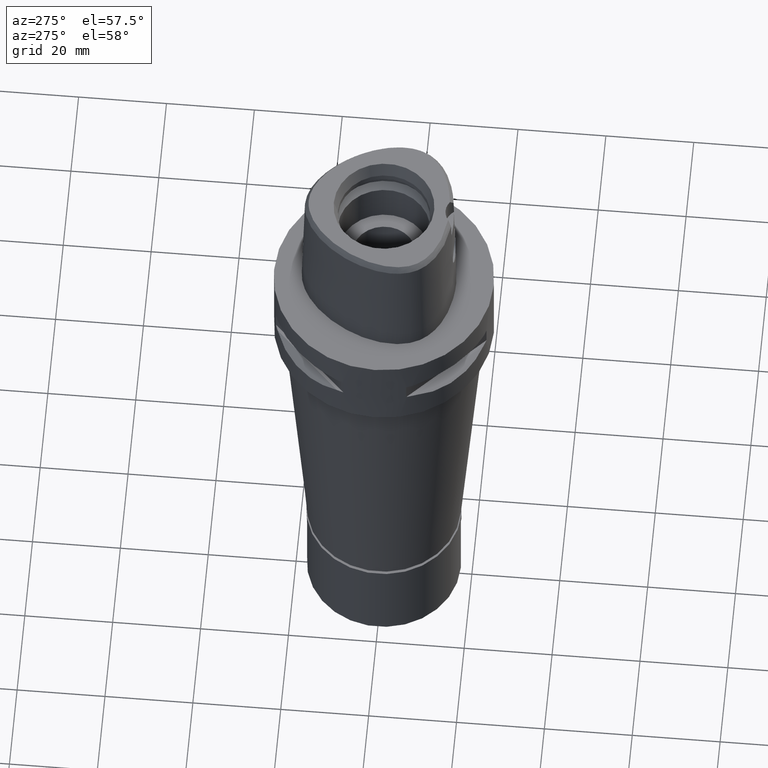
[diagram: clean part render]
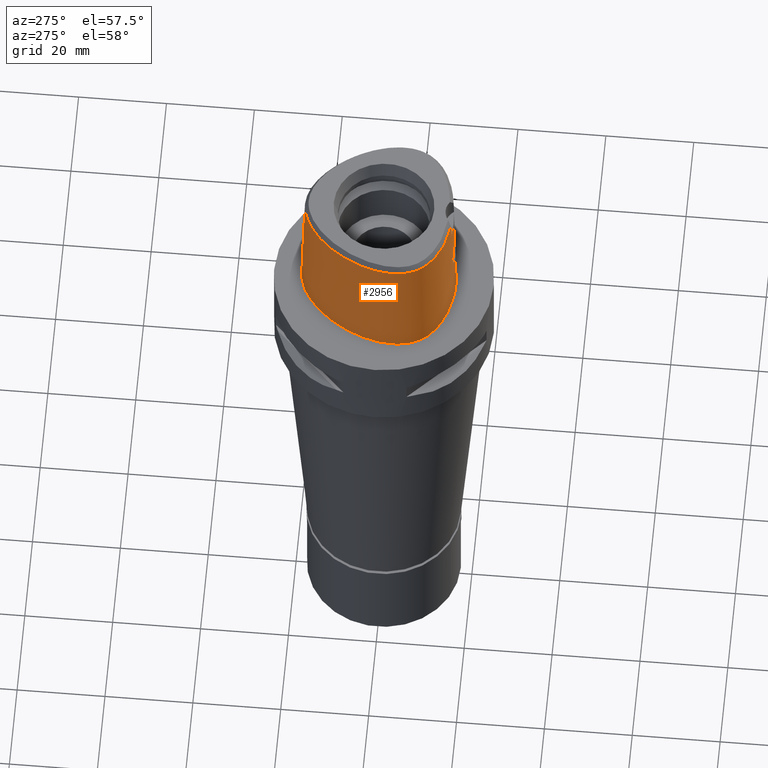
[diagram: same view with one face highlighted and labeled with its STEP entity id]
A machine part, auxiliary view. The second image highlights one B-rep face of the part: STEP entity #2956.
In plain terms, the highlighted face is a freeform B-spline surface patch.
Its self-contained STEP definition (entity closure, byte-faithful):
#50 = CARTESIAN_POINT ( 'NONE',  ( 2.030224829794000080E-07, -15.83752876601000281, 24.70000006102999990 ) ) ;
#55 = CARTESIAN_POINT ( 'NONE',  ( -7.523733151595044966, 15.26501052509501477, 28.52071192347001727 ) ) ;
#136 = CARTESIAN_POINT ( 'NONE',  ( -11.46563507465623033, 12.45218749529545832, 2.902634408600678756E-07 ) ) ;
#164 = CARTESIAN_POINT ( 'NONE',  ( -2.810669180507297416, -15.93357175435962070, 15.18434255724911708 ) ) ;
#171 = CARTESIAN_POINT ( 'NONE',  ( -0.4507704990259999711, 17.98660881677999868, 29.09114250960000092 ) ) ;
#176 = VECTOR ( 'NONE', #1967, 1000.000000000000114 ) ;
#182 = VERTEX_POINT ( 'NONE', #1981 ) ;
#196 = CARTESIAN_POINT ( 'NONE',  ( -16.77753631730000095, -0.3562822726174000310, 29.09114250960000092 ) ) ;
#211 = CARTESIAN_POINT ( 'NONE',  ( -2.977125115133987254, -15.96287852150346609, 13.32982323607667752 ) ) ;
#218 = CARTESIAN_POINT ( 'NONE',  ( -13.74710222949999938, 7.936918704753999521, 29.09114250960000092 ) ) ;
#234 = CARTESIAN_POINT ( 'NONE',  ( -7.967839659705319377, 15.83070311923739659, 2.902634408600678756E-07 ) ) ;
#236 = B_SPLINE_CURVE_WITH_KNOTS ( 'NONE', 3,
 ( #1367, #2101, #2468, #4044, #234, #136, #4828, #1777, #3300, #2518, #534, #2075, #3275, #3573, #1730, #1752, #3623, #3251, #4352, #4074, #1396, #1705 ),
 .UNSPECIFIED., .F., .F.,
 ( 4, 1, 1, 1, 1, 1, 1, 1, 1, 1, 1, 1, 1, 1, 1, 1, 1, 1, 1, 4 ),
 ( 0.0000000000000000000, 0.04166666666800000057, 0.08333333333460000991, 0.1666666666679000042, 0.2500000000011000090, 0.3333333333342000104, 0.4166666666675000186, 0.5000000000006999956, 0.5416666666674000430, 0.5833333333339000282, 0.6250000000005999645, 0.6458333333337999971, 0.6666666666671999808, 0.6875000000005000445, 0.7083333333337999971, 0.7500000000004000134, 0.7916666666671000607, 0.8333333333336000459, 0.9166666666668999985, 1.000000000000000000 ),
 .UNSPECIFIED. ) ;
#239 = CARTESIAN_POINT ( 'NONE',  ( -1.777739861706575164, -15.98655714082971713, 16.48034954023893661 ) ) ;
#247 = B_SPLINE_SURFACE_WITH_KNOTS ( 'NONE', 3, 3, ( 
 ( #2058, #3584, #4465, #3609 ),
 ( #3313, #1741, #2113, #653 ),
 ( #2880, #4837, #937, #171 ),
 ( #2505, #279, #4441, #1765 ),
 ( #2194, #1350, #4005, #1813 ),
 ( #966, #1022, #4032, #4117 ),
 ( #3634, #3336, #598, #1717 ),
 ( #2137, #3240, #4412, #218 ),
 ( #3656, #4860, #2587, #2905 ),
 ( #991, #3286, #2529, #196 ),
 ( #4812, #3715, #4058, #1431 ),
 ( #1382, #4763, #623, #2961 ),
 ( #2162, #3686, #3262, #251 ),
 ( #1789, #4784, #1406, #4495 ),
 ( #2933, #2558, #4091, #2479 ),
 ( #1052, #2085, #1323, #2851 ),
 ( #4386, #573, #4613, #3432 ),
 ( #1504, #3391, #4588, #2242 ),
 ( #3040, #746, #3765, #307 ),
 ( #3014, #704, #3367, #374 ),
 ( #4892, #4916, #1484, #330 ),
 ( #2676, #3835, #3742, #3457 ),
 ( #399, #1146, #4144, #1863 ),
 ( #2217, #351, #1907, #2265 ) ),
 .UNSPECIFIED., .F., .F., .F.,
 ( 4, 1, 1, 1, 1, 1, 1, 1, 1, 1, 1, 1, 1, 1, 1, 1, 1, 1, 1, 1, 1, 4 ),
 ( 4, 4 ),
 ( -0.01173812893894999980, 0.0000000000000000000, 0.04166666666800000057, 0.08333333333460000991, 0.1666666666679000042, 0.2500000000011000090, 0.3333333333342000104, 0.4166666666675000186, 0.5000000000006999956, 0.5416666666674000430, 0.5833333333339000282, 0.6250000000005999645, 0.6458333333337999971, 0.6666666666671999808, 0.6875000000005000445, 0.7083333333337999971, 0.7500000000004000134, 0.7916666666671000607, 0.8333333333336000459, 0.9166666666668999985, 1.000000000000000000, 1.017968513185000035 ),
 ( 6.196873590658000248E-09, 0.9999996839595000075 ),
 .UNSPECIFIED. ) ;
#251 = CARTESIAN_POINT ( 'NONE',  ( -16.46533720197999884, -6.958244337978999994, 29.09114250960000092 ) ) ;
#270 = CARTESIAN_POINT ( 'NONE',  ( -0.7803301224158988303, -16.17127761896326277, 11.02218832487880462 ) ) ;
#279 = CARTESIAN_POINT ( 'NONE',  ( -1.992618757892999914, 18.32080821449000041, 9.316771130525999922 ) ) ;
#307 = CARTESIAN_POINT ( 'NONE',  ( -11.32630903587000049, -13.06981832401999988, 29.09114250960000092 ) ) ;
#323 = CARTESIAN_POINT ( 'NONE',  ( -2.167461438340697377, -16.07478142648848518, 11.85411610869223509 ) ) ;
#330 = CARTESIAN_POINT ( 'NONE',  ( -4.922186808108000022, -15.43572524842000071, 29.09114250960000092 ) ) ;
#345 = CARTESIAN_POINT ( 'NONE',  ( -1.175386497639862027, -16.15078445366180304, 11.18557374674750626 ) ) ;
#349 = EDGE_CURVE ( 'NONE', #2353, #182, #3883, .T. ) ;
#351 = CARTESIAN_POINT ( 'NONE',  ( 1.079551363307000189, -16.20136649706000043, 9.316771130525999922 ) ) ;
#366 = CARTESIAN_POINT ( 'NONE',  ( -2.552453281223321380, -16.03022206925511384, 12.33036638904224169 ) ) ;
#374 = CARTESIAN_POINT ( 'NONE',  ( -8.697311594518000177, -14.35163131391999869, 29.09114250960000092 ) ) ;
#399 = CARTESIAN_POINT ( 'NONE',  ( 0.7264497204584000611, -16.46229665649000040, -0.5704145590118000486 ) ) ;
#452 = CARTESIAN_POINT ( 'NONE',  ( -3.738627773282205080, -15.49270868799680301, 28.52071192347001727 ) ) ;
#471 = VECTOR ( 'NONE', #2164, 1000.000000000000227 ) ;
#477 = CARTESIAN_POINT ( 'NONE',  ( -16.85489160761523664, -5.354527567564993262, 28.52071192347001727 ) ) ;
#493 = CARTESIAN_POINT ( 'NONE',  ( 0.0000000000000000000, -16.02877864023999877, 17.05000000000000071 ) ) ;
#517 = CARTESIAN_POINT ( 'NONE',  ( -0.1860095695895606915, -16.02877864024000232, 17.05000000000000426 ) ) ;
#523 = FACE_OUTER_BOUND ( 'NONE', #1260, .T. ) ;
#534 = CARTESIAN_POINT ( 'NONE',  ( -17.56373942211470052, -5.455996092717230184, 2.902634408600678756E-07 ) ) ;
#557 = ORIENTED_EDGE ( 'NONE', *, *, #2820, .T. ) ;
#565 = CARTESIAN_POINT ( 'NONE',  ( -2.955918695228478832, -15.92874700794745202, 14.77770287554524842 ) ) ;
#573 = CARTESIAN_POINT ( 'NONE',  ( -14.61870771712999861, -11.12154153579999871, 9.316771130525999922 ) ) ;
#581 = CARTESIAN_POINT ( 'NONE',  ( -3.213444811939455636, -15.61774738279276953, 25.97357064115666603 ) ) ;
#591 = CARTESIAN_POINT ( 'NONE',  ( -2.789432624430154384, -15.93448362603995250, 15.23385107219888290 ) ) ;
#598 = CARTESIAN_POINT ( 'NONE',  ( -11.09665507429999920, 12.14079284299000072, 19.20395682006000015 ) ) ;
#607 = ORIENTED_EDGE ( 'NONE', *, *, #4695, .T. ) ;
#615 = CARTESIAN_POINT ( 'NONE',  ( -0.7716804096337155361, -16.02065638628776512, 16.95256773572716824 ) ) ;
#623 = CARTESIAN_POINT ( 'NONE',  ( -17.08644829448999758, -5.387673914391999830, 19.20395682006000015 ) ) ;
#625 = CARTESIAN_POINT ( 'NONE',  ( -3.151832883024999780E-11, 17.98202997909999823, 28.52071728569000086 ) ) ;
#653 = CARTESIAN_POINT ( 'NONE',  ( 0.3539521848052000208, 17.96246321054000106, 29.09114250960000092 ) ) ;
#672 = CARTESIAN_POINT ( 'NONE',  ( -2.611019405680786498, -16.02245593392139611, 12.42336243517981131 ) ) ;
#704 = CARTESIAN_POINT ( 'NONE',  ( -8.866858758003999696, -14.81887824760000072, 9.316771130525999922 ) ) ;
#719 = CARTESIAN_POINT ( 'NONE',  ( -2.746377481657157560, -16.00326057041207051, 12.66963668950922894 ) ) ;
#746 = CARTESIAN_POINT ( 'NONE',  ( -11.57144732029000167, -13.50085889136000006, 9.316771130525999922 ) ) ;
#756 = ORIENTED_EDGE ( 'NONE', *, *, #2435, .F. ) ;
#781 = CARTESIAN_POINT ( 'NONE',  ( -3.235121119988999983, -15.64755630481999837, 24.69999999999999929 ) ) ;
#804 = CARTESIAN_POINT ( 'NONE',  ( 2.030224829794000080E-07, -15.83752876601000281, 24.70000006102999990 ) ) ;
#838 = CARTESIAN_POINT ( 'NONE',  ( 6.782427745162731141E-08, -15.90128720080152824, 22.15000025259048755 ) ) ;
#907 = CARTESIAN_POINT ( 'NONE',  ( -1.154649350554052933, -16.01059875151096890, 16.82300001247257271 ) ) ;
#929 = CARTESIAN_POINT ( 'NONE',  ( -1.080687980688739058, -16.01283629952125764, 16.85233897233272060 ) ) ;
#937 = CARTESIAN_POINT ( 'NONE',  ( -0.4636176514126999493, 18.23430334598000258, 19.20395682006000015 ) ) ;
#966 = CARTESIAN_POINT ( 'NONE',  ( -7.976721799469000729, 15.84201698335000330, -0.5704145590118000486 ) ) ;
#975 = CARTESIAN_POINT ( 'NONE',  ( 2.030224829794000080E-07, -15.83752876601000281, 24.70000006102999990 ) ) ;
#984 = CARTESIAN_POINT ( 'NONE',  ( -1.123850819246241084, -16.01154604563820527, 16.83544840130009845 ) ) ;
#991 = CARTESIAN_POINT ( 'NONE',  ( -17.51166498201000010, -0.2260900534781000171, -0.5704145590118000486 ) ) ;
#1022 = CARTESIAN_POINT ( 'NONE',  ( -7.822764788575000239, 15.64591010519000136, 9.316771130525999922 ) ) ;
#1042 = CARTESIAN_POINT ( 'NONE',  ( -2.589913444526261710, -16.02530027108240418, 12.38873572170439097 ) ) ;
#1052 = CARTESIAN_POINT ( 'NONE',  ( -15.66039569081999971, -10.22138777225999995, -0.5704145590118000486 ) ) ;
#1070 = CARTESIAN_POINT ( 'NONE',  ( -2.676760126935361583, -16.01335860443708015, 12.53714519679417094 ) ) ;
#1091 = CARTESIAN_POINT ( 'NONE',  ( -2.823487070365362506, -15.99101270351569859, 12.84654193248369047 ) ) ;
#1114 = CARTESIAN_POINT ( 'NONE',  ( -2.174903967716026898, -16.07399873101336496, 11.86167149722171743 ) ) ;
#1146 = CARTESIAN_POINT ( 'NONE',  ( 0.7201291720390999851, -16.21519153464999974, 9.316771130525999922 ) ) ;
#1201 = CARTESIAN_POINT ( 'NONE',  ( -15.58740380353674837, -8.999391780897031623, 28.52071192347001727 ) ) ;
#1248 = CARTESIAN_POINT ( 'NONE',  ( -16.79165457291105668, -0.3537785057483363582, 28.52071192347001727 ) ) ;
#1260 = EDGE_LOOP ( 'NONE', ( #3486, #3672, #2891, #607, #756, #557, #3057, #3668 ) ) ;
#1293 = CARTESIAN_POINT ( 'NONE',  ( 0.0000000000000000000, -16.02877864023999877, 17.05000000000000071 ) ) ;
#1301 = CARTESIAN_POINT ( 'NONE',  ( -16.47905549556985960, -6.962316292879828339, 28.52071192347001727 ) ) ;
#1317 = CARTESIAN_POINT ( 'NONE',  ( -1.331640452556058563, -16.00477934145615322, 16.74576209627321433 ) ) ;
#1323 = CARTESIAN_POINT ( 'NONE',  ( -15.25987615121000118, -9.930205417066000351, 19.20395682006000015 ) ) ;
#1339 = CARTESIAN_POINT ( 'NONE',  ( -3.027041479268741675, -15.93083733890011899, 14.38613028388799187 ) ) ;
#1350 = CARTESIAN_POINT ( 'NONE',  ( -4.628819286711999936, 17.52182800605999802, 9.316771130525999922 ) ) ;
#1367 = CARTESIAN_POINT ( 'NONE',  ( 6.766080446176000696E-11, 18.69499999997999851, 1.596870783752999901E-13 ) ) ;
#1371 = CARTESIAN_POINT ( 'NONE',  ( -1.464230115316311753, -15.99978155752924280, 16.67600899016695593 ) ) ;
#1382 = CARTESIAN_POINT ( 'NONE',  ( -17.57791639372999981, -5.458025465413999910, -0.5704145590118000486 ) ) ;
#1396 = CARTESIAN_POINT ( 'NONE',  ( -1.683697722098772553, -16.45499999274726477, 2.902634408600678756E-07 ) ) ;
#1399 = CARTESIAN_POINT ( 'NONE',  ( -2.909137552899626833, -15.97627371699406140, 13.08234413149751596 ) ) ;
#1406 = CARTESIAN_POINT ( 'NONE',  ( -16.22974823379999876, -8.250337701102999688, 19.20395682006000015 ) ) ;
#1422 = CARTESIAN_POINT ( 'NONE',  ( -1.171575576435083033, -16.15098385800270364, 11.18398276020164417 ) ) ;
#1431 = CARTESIAN_POINT ( 'NONE',  ( -16.98194860270000106, -3.273961223849000124, 29.09114250960000092 ) ) ;
#1478 = CARTESIAN_POINT ( 'NONE',  ( -2.785351805582556128, -15.99721084885888445, 12.75429401941662277 ) ) ;
#1484 = CARTESIAN_POINT ( 'NONE',  ( -4.965998119821999346, -15.68039705940999973, 19.20395682006000015 ) ) ;
#1498 = CARTESIAN_POINT ( 'NONE',  ( -1.994661405231343609, -16.09284332352424229, 11.68121651172240227 ) ) ;
#1504 = CARTESIAN_POINT ( 'NONE',  ( -13.51574691055999899, -12.49390941008000055, -0.5704145590118000486 ) ) ;
#1592 = CARTESIAN_POINT ( 'NONE',  ( -13.75951393052779004, 7.944084103042361455, 28.52071192347001727 ) ) ;
#1594 = CARTESIAN_POINT ( 'NONE',  ( 6.766080446176000696E-11, 18.69499999997999851, 1.596870783752999901E-13 ) ) ;
#1705 = CARTESIAN_POINT ( 'NONE',  ( -1.591572851427000094E-11, -16.45500000000000185, 1.608343088339999949E-13 ) ) ;
#1710 = CARTESIAN_POINT ( 'NONE',  ( -1.142332392166681032, -16.01097948216497713, 16.82800652385417806 ) ) ;
#1717 = CARTESIAN_POINT ( 'NONE',  ( -10.90668517024999851, 11.98047084134999984, 29.09114250960000092 ) ) ;
#1730 = CARTESIAN_POINT ( 'NONE',  ( -15.64884223668260788, -10.21298827697042277, 2.902634408600678756E-07 ) ) ;
#1735 = CARTESIAN_POINT ( 'NONE',  ( -3.012997481774652542, -15.92993551890240944, 14.48403558616877440 ) ) ;
#1741 = CARTESIAN_POINT ( 'NONE',  ( 0.3738602579233000212, 18.45648981796999877, 9.316771130525999922 ) ) ;
#1752 = CARTESIAN_POINT ( 'NONE',  ( -14.78833379871087850, -11.28232909655144489, 2.902634408600678756E-07 ) ) ;
#1756 = CARTESIAN_POINT ( 'NONE',  ( -2.147290074988068564, -15.96826519308857151, 16.16606823402927162 ) ) ;
#1765 = CARTESIAN_POINT ( 'NONE',  ( -1.890839688985999745, 17.83402871055000105, 29.09114250960000092 ) ) ;
#1777 = CARTESIAN_POINT ( 'NONE',  ( -16.51672824093293102, 3.703437497522479749, 2.902634408600678756E-07 ) ) ;
#1780 = CARTESIAN_POINT ( 'NONE',  ( -2.139722381400449791, -15.96867257770621329, 16.17353267031687380 ) ) ;
#1789 = CARTESIAN_POINT ( 'NONE',  ( -16.68217931805000021, -8.451606615314000592, -0.5704145590118000486 ) ) ;
#1805 = CARTESIAN_POINT ( 'NONE',  ( -1.304824586065641556, -16.14367980511035938, 11.24258093298021421 ) ) ;
#1813 = CARTESIAN_POINT ( 'NONE',  ( -4.416345333839000631, 17.06979586586999886, 29.09114250960000092 ) ) ;
#1830 = CARTESIAN_POINT ( 'NONE',  ( -2.543826128444885981, -16.03134158490991368, 12.31726274100129181 ) ) ;
#1863 = CARTESIAN_POINT ( 'NONE',  ( 0.7074880752007000062, -15.72098129098000285, 29.09114250960000092 ) ) ;
#1901 = CARTESIAN_POINT ( 'NONE',  ( -2.828519626698093425, -15.99018834924776833, 12.85893844538407471 ) ) ;
#1907 = CARTESIAN_POINT ( 'NONE',  ( 1.070056064474000035, -15.95437377842999815, 19.20395682006000015 ) ) ;
#1910 = EDGE_CURVE ( 'NONE', #2000, #3222, #3099, .T. ) ;
#1967 = DIRECTION ( 'NONE',  ( -1.272217798567968351E-12, -0.02499051295371941192, -0.9996876883618752707 ) ) ;
#1974 = EDGE_CURVE ( 'NONE', #182, #2000, #4053, .T. ) ;
#1981 = CARTESIAN_POINT ( 'NONE',  ( 0.0000000000000000000, -16.02877864023999877, 17.05000000000000071 ) ) ;
#2000 = VERTEX_POINT ( 'NONE', #2210 ) ;
#2012 = CARTESIAN_POINT ( 'NONE',  ( -15.84228689413313695, 3.460033471612402156, 28.52071192347001727 ) ) ;
#2040 = CARTESIAN_POINT ( 'NONE',  ( -0.6295828121024585888, 17.98203011041520938, 28.52071192347001727 ) ) ;
#2053 = CARTESIAN_POINT ( 'NONE',  ( -1.858121229639703165, -15.98284882596949430, 16.42071856142349517 ) ) ;
#2058 = CARTESIAN_POINT ( 'NONE',  ( 0.5756361489238999152, 18.69183959664999861, -0.5704145590118000486 ) ) ;
#2075 = CARTESIAN_POINT ( 'NONE',  ( -17.16495051082599232, -7.165908201052948456, 2.902634408600678756E-07 ) ) ;
#2079 = CARTESIAN_POINT ( 'NONE',  ( -2.121841374836336502, -15.96962928976702223, 16.19099185722664913 ) ) ;
#2085 = CARTESIAN_POINT ( 'NONE',  ( -15.46013592100999823, -10.07579659465999988, 9.316771130525999922 ) ) ;
#2101 = CARTESIAN_POINT ( 'NONE',  ( -0.6801907853514496116, 18.69499999274968260, 2.902634408600678756E-07 ) ) ;
#2107 = CARTESIAN_POINT ( 'NONE',  ( -0.9942354941257960377, -16.01528989706931583, 16.88423654522949491 ) ) ;
#2113 = CARTESIAN_POINT ( 'NONE',  ( 0.3639062213641999777, 18.20947651425999680, 19.20395682006000015 ) ) ;
#2130 = CARTESIAN_POINT ( 'NONE',  ( -3.049900212868040139, -15.94261167837582249, 13.81468546120752094 ) ) ;
#2137 = CARTESIAN_POINT ( 'NONE',  ( -14.39249254919999998, 8.309508946964999865, -0.5704145590118000486 ) ) ;
#2144 = CARTESIAN_POINT ( 'NONE',  ( -3.191384176940533557, -15.58827403572775339, 27.24714128231333277 ) ) ;
#2151 = CARTESIAN_POINT ( 'NONE',  ( -1.161963448143295885, -16.01037049747072416, 16.81999471490733455 ) ) ;
#2162 = CARTESIAN_POINT ( 'NONE',  ( -17.17866842596000154, -7.169980043617999677, -0.5704145590118000486 ) ) ;
#2164 = DIRECTION ( 'NONE',  ( 3.476355713690889960E-12, 0.02499051285796925065, -0.9996876883642689116 ) ) ;
#2194 = CARTESIAN_POINT ( 'NONE',  ( -4.735056263149000522, 17.74784407615999982, -0.5704145590118000486 ) ) ;
#2210 = CARTESIAN_POINT ( 'NONE',  ( -1.980591514487999971E-12, -16.18126839358999902, 10.94999999999999929 ) ) ;
#2217 = CARTESIAN_POINT ( 'NONE',  ( 1.089046662139999899, -16.44835921569999826, -0.5704145590118000486 ) ) ;
#2233 = CARTESIAN_POINT ( 'NONE',  ( -1.489022098418545381, -16.13222843889011671, 11.33656707562901822 ) ) ;
#2242 = CARTESIAN_POINT ( 'NONE',  ( -13.05575617123000143, -11.90823727355999928, 29.09114250960000092 ) ) ;
#2259 = CARTESIAN_POINT ( 'NONE',  ( -2.651693848328784853, -16.01689519106128756, 12.49206992028461016 ) ) ;
#2265 = CARTESIAN_POINT ( 'NONE',  ( 1.060560765641999970, -15.70738105978999855, 29.09114250960000092 ) ) ;
#2353 = VERTEX_POINT ( 'NONE', #975 ) ;
#2368 = CARTESIAN_POINT ( 'NONE',  ( -2.169052023958246256, -15.77399788493218047, 24.70000016923092900 ) ) ;
#2383 = CARTESIAN_POINT ( 'NONE',  ( -11.33338053122041877, -13.08225253589758630, 28.52071192347001727 ) ) ;
#2423 = CARTESIAN_POINT ( 'NONE',  ( -1.578081282717826550, -15.99520688258699508, 16.61014732800261484 ) ) ;
#2431 = CARTESIAN_POINT ( 'NONE',  ( -13.06460239553432778, -11.91950051571991587, 28.52071192347001727 ) ) ;
#2435 = EDGE_CURVE ( 'NONE', #4556, #4076, #4444, .T. ) ;
#2446 = CARTESIAN_POINT ( 'NONE',  ( -1.647720974877696420, -15.99226611569825174, 16.56665347345779438 ) ) ;
#2468 = CARTESIAN_POINT ( 'NONE',  ( -2.040572356172971169, 18.55015624285487164, 2.902634408600678756E-07 ) ) ;
#2472 = CARTESIAN_POINT ( 'NONE',  ( -1.684236301197035601, -15.99068050411804975, 16.54283389550539596 ) ) ;
#2479 = CARTESIAN_POINT ( 'NONE',  ( -15.57503103062999905, -8.992248357108000079, 29.09114250960000092 ) ) ;
#2498 = CARTESIAN_POINT ( 'NONE',  ( -3.050024389103565436, -15.93682728871436893, 14.04426652284395338 ) ) ;
#2505 = CARTESIAN_POINT ( 'NONE',  ( -2.043508292347000044, 18.56419796646000009, -0.5704145590118000486 ) ) ;
#2515 = VERTEX_POINT ( 'NONE', #4347 ) ;
#2518 = CARTESIAN_POINT ( 'NONE',  ( -17.71143734833404437, -3.269218750047608424, 2.902634408600678756E-07 ) ) ;
#2521 = CARTESIAN_POINT ( 'NONE',  ( -1.974011923642614574, -15.97722169910660561, 16.32556985268800531 ) ) ;
#2529 = CARTESIAN_POINT ( 'NONE',  ( -17.02224587221000007, -0.3128848662375999790, 19.20395682006000015 ) ) ;
#2558 = CARTESIAN_POINT ( 'NONE',  ( -16.00394177348999847, -9.239880090674999380, 9.316771130525999922 ) ) ;
#2576 = CARTESIAN_POINT ( 'NONE',  ( -1.365876440252466129, -16.14000093520536083, 11.27254294479018526 ) ) ;
#2587 = CARTESIAN_POINT ( 'NONE',  ( -16.06260414779999834, 3.539545362120000149, 19.20395682006000015 ) ) ;
#2604 = CARTESIAN_POINT ( 'NONE',  ( -2.421847348362510033, -16.04659734725419185, 12.14335169878023279 ) ) ;
#2625 = CARTESIAN_POINT ( 'NONE',  ( -2.326795673539355569, -16.05749942887523218, 12.02743345691540355 ) ) ;
#2647 = CARTESIAN_POINT ( 'NONE',  ( -1.572520811366936222, -16.12649376600629481, 11.38472095010802931 ) ) ;
#2676 = CARTESIAN_POINT ( 'NONE',  ( -1.321318946904000091, -16.50155084269999861, -0.5704145590118000486 ) ) ;
#2734 = CARTESIAN_POINT ( 'NONE',  ( -3.151832883024999780E-11, 17.98202997909999823, 28.52071728569000086 ) ) ;
#2759 = CARTESIAN_POINT ( 'NONE',  ( -3.168920966622999824, -15.55911077538999976, 28.52071192346999950 ) ) ;
#2780 = CARTESIAN_POINT ( 'NONE',  ( -10.91764528034774528, 11.98972044748025567, 28.52071192347001727 ) ) ;
#2820 = EDGE_CURVE ( 'NONE', #4556, #2515, #2822, .T. ) ;
#2822 = B_SPLINE_CURVE_WITH_KNOTS ( 'NONE', 3,
 ( #2759, #452, #4740, #3166, #2383, #2431, #3914, #3487, #1201, #3512, #1301, #477, #3121, #1248, #2012, #1592, #2780, #55, #4314, #2830, #2040, #2734 ),
 .UNSPECIFIED., .F., .F.,
 ( 4, 1, 1, 1, 1, 1, 1, 1, 1, 1, 1, 1, 1, 1, 1, 1, 1, 1, 1, 4 ),
 ( 0.0000000000000000000, 0.03108635432773702162, 0.1191694130251577666, 0.1632109423737096165, 0.2072524717224729085, 0.2512940010711304795, 0.2733147657454592094, 0.2953355304197880504, 0.3173562950942224736, 0.3393770597684456214, 0.3834185891172087746, 0.4274601184657605968, 0.4715016478145239165, 0.5595847065118388919, 0.6476677652092598381, 0.7357508239064691757, 0.8238338826037843177, 0.9119169413012050418, 0.9559584706498626128, 1.000000000000000000 ),
 .UNSPECIFIED. ) ;
#2823 = CARTESIAN_POINT ( 'NONE',  ( -2.094858927816665606, -15.97106233740283976, 16.21701581232822065 ) ) ;
#2830 = CARTESIAN_POINT ( 'NONE',  ( -1.893775706182446505, 17.84807082153692903, 28.52071192347001727 ) ) ;
#2843 = CARTESIAN_POINT ( 'NONE',  ( -0.6729281202622269253, -16.02259025627639133, 16.97651237904559096 ) ) ;
#2851 = CARTESIAN_POINT ( 'NONE',  ( -15.05961638139999970, -9.784614239467000374, 29.09114250960000092 ) ) ;
#2873 = CARTESIAN_POINT ( 'NONE',  ( -3.040936525959400338, -15.93294854341575828, 14.23999838212622215 ) ) ;
#2880 = CARTESIAN_POINT ( 'NONE',  ( -0.4893119561862999123, 18.72969240435999794, -0.5704145590118000486 ) ) ;
#2891 = ORIENTED_EDGE ( 'NONE', *, *, #349, .F. ) ;
#2905 = CARTESIAN_POINT ( 'NONE',  ( -15.82879768048000102, 3.455165251528999892, 29.09114250960000092 ) ) ;
#2923 = CARTESIAN_POINT ( 'NONE',  ( -2.852964108057066017, -15.98613240798083623, 12.92095709857100516 ) ) ;
#2933 = CARTESIAN_POINT ( 'NONE',  ( -16.21839714490999995, -9.363695957458000763, -0.5704145590118000486 ) ) ;
#2956 = ADVANCED_FACE ( 'NONE', ( #523 ), #247, .T. ) ;
#2961 = CARTESIAN_POINT ( 'NONE',  ( -16.84071424487999735, -5.352498138881000678, 29.09114250960000092 ) ) ;
#3014 = CARTESIAN_POINT ( 'NONE',  ( -8.951632339747000344, -15.05250171443999996, -0.5704145590118000486 ) ) ;
#3040 = CARTESIAN_POINT ( 'NONE',  ( -11.69401646250000049, -13.71637917501999837, -0.5704145590118000486 ) ) ;
#3057 = ORIENTED_EDGE ( 'NONE', *, *, #4173, .T. ) ;
#3099 = LINE ( 'NONE', #4246, #176 ) ;
#3121 = CARTESIAN_POINT ( 'NONE',  ( -16.99625270563292290, -3.273868231552949926, 28.52071192347001727 ) ) ;
#3162 = CARTESIAN_POINT ( 'NONE',  ( 6.797948791014920614E-08, -15.96503292052123690, 19.60000012629524591 ) ) ;
#3166 = CARTESIAN_POINT ( 'NONE',  ( -8.702202515497985402, -14.36510996955648167, 28.52071192347001727 ) ) ;
#3222 = VERTEX_POINT ( 'NONE', #4308 ) ;
#3231 = CARTESIAN_POINT ( 'NONE',  ( -2.814800487489387493, -15.93339868692382488, 15.17448999603847426 ) ) ;
#3237 = B_SPLINE_CURVE_WITH_KNOTS ( 'NONE', 3,
 ( #804, #3544, #2368, #781 ),
 .UNSPECIFIED., .F., .F.,
 ( 4, 4 ),
 ( 0.0000000000000000000, 1.000000000000000000 ),
 .UNSPECIFIED. ) ;
#3240 = CARTESIAN_POINT ( 'NONE',  ( -14.17736244263000067, 8.185312199561000313, 9.316771130525999922 ) ) ;
#3251 = CARTESIAN_POINT ( 'NONE',  ( -11.68694516223571078, -13.70394530617399909, 2.902634408600678756E-07 ) ) ;
#3256 = CARTESIAN_POINT ( 'NONE',  ( -2.897875851388389101, -15.92997726602839137, 14.97345579577848973 ) ) ;
#3260 = CARTESIAN_POINT ( 'NONE',  ( -3.168920966622999824, -15.55911077538999976, 28.52071192346999950 ) ) ;
#3262 = CARTESIAN_POINT ( 'NONE',  ( -16.70311427664000092, -7.028822906525000747, 19.20395682006000015 ) ) ;
#3275 = CARTESIAN_POINT ( 'NONE',  ( -16.66912841474808715, -8.445800778295868838, 2.902634408600678756E-07 ) ) ;
#3278 = CARTESIAN_POINT ( 'NONE',  ( -2.663989615087106078, -15.94049756288776187, 15.48802251320619483 ) ) ;
#3286 = CARTESIAN_POINT ( 'NONE',  ( -17.26695542711000186, -0.2694874598577999825, 9.316771130525999922 ) ) ;
#3300 = CARTESIAN_POINT ( 'NONE',  ( -17.49754711588939315, -0.2285937512740469912, 2.902634408600678756E-07 ) ) ;
#3305 = CARTESIAN_POINT ( 'NONE',  ( -2.804416461969645891, -15.93383585885214870, 15.19914549896235734 ) ) ;
#3313 = CARTESIAN_POINT ( 'NONE',  ( 0.3838142944823000335, 18.70350312168999807, -0.5704145590118000486 ) ) ;
#3328 = CARTESIAN_POINT ( 'NONE',  ( -1.824495776585046691, -16.10763072133384455, 11.54770719424305625 ) ) ;
#3336 = CARTESIAN_POINT ( 'NONE',  ( -11.28662497834000078, 12.30111484462000071, 9.316771130525999922 ) ) ;
#3355 = CARTESIAN_POINT ( 'NONE',  ( -1.234760267101593367, -16.14760890805743543, 11.21096960602428716 ) ) ;
#3367 = CARTESIAN_POINT ( 'NONE',  ( -8.782085176261000825, -14.58525478075999970, 19.20395682006000015 ) ) ;
#3391 = CARTESIAN_POINT ( 'NONE',  ( -13.36241666411000040, -12.29868536457000161, 9.316771130525999922 ) ) ;
#3432 = CARTESIAN_POINT ( 'NONE',  ( -14.25868500212999912, -10.78027813091999931, 29.09114250960000092 ) ) ;
#3457 = CARTESIAN_POINT ( 'NONE',  ( -1.286803369909999883, -15.75925599654999942, 29.09114250960000092 ) ) ;
#3486 = ORIENTED_EDGE ( 'NONE', *, *, #1910, .F. ) ;
#3487 = CARTESIAN_POINT ( 'NONE',  ( -15.07117015427914275, -9.793013966485473176, 28.52071192347001727 ) ) ;
#3512 = CARTESIAN_POINT ( 'NONE',  ( -16.01658395503594434, -8.155509241190108227, 28.52071192347001727 ) ) ;
#3544 = CARTESIAN_POINT ( 'NONE',  ( -1.084489118009396735, -15.83754148632192660, 24.70000016923092900 ) ) ;
#3573 = CARTESIAN_POINT ( 'NONE',  ( -16.20602471333987893, -9.356552730739435830, 2.902634408600678756E-07 ) ) ;
#3576 = CARTESIAN_POINT ( 'NONE',  ( -2.453157249255232042, -15.95160785209423437, 15.82331514067402622 ) ) ;
#3584 = CARTESIAN_POINT ( 'NONE',  ( 0.5606135782155999836, 18.44514047048999927, 9.316771130525999922 ) ) ;
#3603 = CARTESIAN_POINT ( 'NONE',  ( -2.727932080410536919, -15.93733995233605505, 15.36492654818570891 ) ) ;
#3609 = CARTESIAN_POINT ( 'NONE',  ( 0.5305684367989000894, 17.95174221817999793, 29.09114250960000092 ) ) ;
#3623 = CARTESIAN_POINT ( 'NONE',  ( -13.50690093030188343, -12.48264647864620436, 2.902634408600678756E-07 ) ) ;
#3626 = CARTESIAN_POINT ( 'NONE',  ( -1.246904710702340768, -16.00770134240424269, 16.78481881916648177 ) ) ;
#3634 = CARTESIAN_POINT ( 'NONE',  ( -11.47659488238999970, 12.46143684625000070, -0.5704145590118000486 ) ) ;
#3649 = CARTESIAN_POINT ( 'NONE',  ( -3.033174470079177176, -15.94941370605617514, 13.62317640955338760 ) ) ;
#3656 = CARTESIAN_POINT ( 'NONE',  ( -16.53021708244999743, 3.708305583302999864, -0.5704145590118000486 ) ) ;
#3668 = ORIENTED_EDGE ( 'NONE', *, *, #4645, .T. ) ;
#3672 = ORIENTED_EDGE ( 'NONE', *, *, #1974, .F. ) ;
#3677 = CARTESIAN_POINT ( 'NONE',  ( -1.671121799479824865, -15.99125384014654294, 16.55147925626843985 ) ) ;
#3686 = CARTESIAN_POINT ( 'NONE',  ( -16.94089135129999946, -7.099401475071999812, 9.316771130525999922 ) ) ;
#3706 = CARTESIAN_POINT ( 'NONE',  ( -1.185240961617994637, -16.15026635704342084, 11.18970954939995188 ) ) ;
#3715 = CARTESIAN_POINT ( 'NONE',  ( -17.47781023866999917, -3.270737581493999624, 9.316771130525999922 ) ) ;
#3734 = CARTESIAN_POINT ( 'NONE',  ( -0.3804472261485084550, -16.18126839358999902, 10.94999999999999751 ) ) ;
#3742 = CARTESIAN_POINT ( 'NONE',  ( -1.298308562240999775, -16.00668761193000122, 19.20395682006000015 ) ) ;
#3765 = CARTESIAN_POINT ( 'NONE',  ( -11.44887817807999930, -13.28533860768999908, 19.20395682006000015 ) ) ;
#3782 = CARTESIAN_POINT ( 'NONE',  ( -2.481413756882850929, -16.03938740154340792, 12.22374741087844896 ) ) ;
#3835 = CARTESIAN_POINT ( 'NONE',  ( -1.309813754571999889, -16.25411922731999681, 9.316771130525999922 ) ) ;
#3883 = B_SPLINE_CURVE_WITH_KNOTS ( 'NONE', 3,
 ( #50, #838, #3162, #493 ),
 .UNSPECIFIED., .F., .F.,
 ( 4, 4 ),
 ( 0.0000000000000000000, 1.000000000000000000 ),
 .UNSPECIFIED. ) ;
#3914 = CARTESIAN_POINT ( 'NONE',  ( -14.26907056455322653, -10.79012254419304995, 28.52071192347001727 ) ) ;
#3951 = CARTESIAN_POINT ( 'NONE',  ( -2.757857542925465477, -15.93590525390315271, 15.30389640927966610 ) ) ;
#3971 = CARTESIAN_POINT ( 'NONE',  ( -2.319868985705006548, -15.95889227881300343, 15.99336665119000678 ) ) ;
#3999 = CARTESIAN_POINT ( 'NONE',  ( -2.615901618704161269, -15.94298692150345964, 15.57147967508559461 ) ) ;
#4005 = CARTESIAN_POINT ( 'NONE',  ( -4.522582310275000239, 17.29581193596999711, 19.20395682006000015 ) ) ;
#4032 = CARTESIAN_POINT ( 'NONE',  ( -7.668807777680999749, 15.44980322702000031, 19.20395682006000015 ) ) ;
#4033 = LINE ( 'NONE', #625, #471 ) ;
#4044 = CARTESIAN_POINT ( 'NONE',  ( -4.728927203697240067, 17.73480468086512474, 2.902634408600678756E-07 ) ) ;
#4049 = CARTESIAN_POINT ( 'NONE',  ( -2.884965141857560145, -15.98065922520800264, 13.00785839096715435 ) ) ;
#4053 = B_SPLINE_CURVE_WITH_KNOTS ( 'NONE', 3,
 ( #1293, #517, #4357, #2843, #615, #4777, #2107, #929, #984, #1710, #907, #2151, #3626, #1317, #1371, #4377, #2423, #4730, #2446, #3677, #2472, #239, #2053, #2521, #4804, #2823, #2079, #1780, #1756, #3971, #3576, #3999, #3278, #3603, #3951, #591, #3305, #164, #3231, #4758, #3256, #565, #1735, #1339, #2873, #4406, #4831, #2498, #2130, #3649, #211, #4431, #1399, #4049, #2923, #4908, #1901, #1091, #4533, #1478, #719, #1070, #2259, #672, #1042, #4558, #366, #1830, #3782, #2604, #2625, #4158, #4852, #4133, #1114, #323, #1498, #3328, #2647, #2233, #2576, #1805, #3355, #4107, #3706, #345, #1422, #270, #3734, #4881 ),
 .UNSPECIFIED., .F., .F.,
 ( 4, 2, 2, 1, 1, 1, 2, 2, 2, 2, 1, 2, 2, 2, 1, 1, 2, 2, 2, 2, 1, 1, 1, 2, 2, 2, 2, 2, 2, 2, 2, 1, 1, 1, 2, 2, 2, 2, 1, 2, 2, 2, 1, 1, 2, 2, 2, 2, 1, 1, 1, 2, 2, 4 ),
 ( 0.0000000000000000000, 0.06249999999999215905, 0.09374999999998812061, 0.1093749999999862471, 0.1171874999999854561, 0.1210937499999850814, 0.1230468749999848732, 0.1249999999999846512, 0.1562499999999848732, 0.1718749999999851785, 0.1796874999999853728, 0.1835937499999857059, 0.1874999999999860389, 0.2187499999999879541, 0.2343749999999886480, 0.2421874999999886202, 0.2460937499999889533, 0.2499999999999892863, 0.3124999999999984457, 0.3437500000000029976, 0.3593750000000054956, 0.3671875000000069944, 0.3710937500000077716, 0.3730468750000081601, 0.3750000000000084932, 0.4375000000000116573, 0.4687500000000129896, 0.4843750000000136002, 0.5000000000000143219, 0.5625000000000168754, 0.5937500000000179856, 0.6093750000000184297, 0.6171875000000187628, 0.6210937500000185407, 0.6230468750000185407, 0.6250000000000185407, 0.6562500000000213163, 0.6718750000000225375, 0.6796875000000228706, 0.6835937500000228706, 0.6875000000000227596, 0.7187500000000228706, 0.7343750000000228706, 0.7421875000000226485, 0.7460937500000226485, 0.7500000000000225375, 0.8125000000000193179, 0.8437500000000175415, 0.8593750000000165423, 0.8671875000000158762, 0.8710937500000155431, 0.8730468750000152101, 0.8750000000000149880, 1.000000000000000000 ),
 .UNSPECIFIED. ) ;
#4058 = CARTESIAN_POINT ( 'NONE',  ( -17.22987942067999967, -3.272349402672000362, 19.20395682006000015 ) ) ;
#4074 = CARTESIAN_POINT ( 'NONE',  ( -5.051093166287000003, -16.15562499281375963, 2.902634408600678756E-07 ) ) ;
#4076 = VERTEX_POINT ( 'NONE', #4118 ) ;
#4091 = CARTESIAN_POINT ( 'NONE',  ( -15.78948640206000142, -9.116064223890999685, 19.20395682006000015 ) ) ;
#4107 = CARTESIAN_POINT ( 'NONE',  ( -1.200046882047434371, -16.14948273154545078, 11.19596910874576423 ) ) ;
#4117 = CARTESIAN_POINT ( 'NONE',  ( -7.514850766786999259, 15.25369634884999925, 29.09114250960000092 ) ) ;
#4118 = CARTESIAN_POINT ( 'NONE',  ( -3.235121119988999983, -15.64755630481999837, 24.69999999999999929 ) ) ;
#4133 = CARTESIAN_POINT ( 'NONE',  ( -2.192347023517017490, -16.07215629485219566, 11.87955887064578597 ) ) ;
#4144 = CARTESIAN_POINT ( 'NONE',  ( 0.7138086236198999401, -15.96808641280999730, 19.20395682006000015 ) ) ;
#4158 = CARTESIAN_POINT ( 'NONE',  ( -2.277845221344409143, -16.06297226044945603, 11.97064251377653399 ) ) ;
#4173 = EDGE_CURVE ( 'NONE', #2515, #4933, #4033, .T. ) ;
#4246 = CARTESIAN_POINT ( 'NONE',  ( -1.980591514487999971E-12, -16.18126839358999902, 10.94999999999999929 ) ) ;
#4308 = CARTESIAN_POINT ( 'NONE',  ( -1.591572851427000094E-11, -16.45500000000000185, 1.608343088339999949E-13 ) ) ;
#4314 = CARTESIAN_POINT ( 'NONE',  ( -4.422474562381879082, 17.08283562090142382, 28.52071192347001727 ) ) ;
#4324 = CARTESIAN_POINT ( 'NONE',  ( -3.168920966622999824, -15.55911077538999976, 28.52071192346999950 ) ) ;
#4347 = CARTESIAN_POINT ( 'NONE',  ( -3.151832883024999780E-11, 17.98202997909999823, 28.52071728569000086 ) ) ;
#4352 = CARTESIAN_POINT ( 'NONE',  ( -8.946741553696162086, -15.03902343064831193, 2.902634408600678756E-07 ) ) ;
#4357 = CARTESIAN_POINT ( 'NONE',  ( -0.3789226270088275061, -16.02723154424910135, 17.03294418566279589 ) ) ;
#4377 = CARTESIAN_POINT ( 'NONE',  ( -1.509334869949237490, -15.99801316580282418, 16.65089544971683821 ) ) ;
#4386 = CARTESIAN_POINT ( 'NONE',  ( -14.79871907462000102, -11.29217323824000196, -0.5704145590118000486 ) ) ;
#4406 = CARTESIAN_POINT ( 'NONE',  ( -3.044373801969618487, -15.93377869067415631, 14.19140803545453444 ) ) ;
#4412 = CARTESIAN_POINT ( 'NONE',  ( -13.96223233607000047, 8.061115452157000760, 19.20395682006000015 ) ) ;
#4431 = CARTESIAN_POINT ( 'NONE',  ( -2.953287761239811182, -15.96791042230702118, 13.23104891048737564 ) ) ;
#4441 = CARTESIAN_POINT ( 'NONE',  ( -1.941729223440000096, 18.07741846252000428, 19.20395682006000015 ) ) ;
#4444 = B_SPLINE_CURVE_WITH_KNOTS ( 'NONE', 3,
 ( #4324, #2144, #581, #4702 ),
 .UNSPECIFIED., .F., .F.,
 ( 4, 4 ),
 ( 0.0000000000000000000, 1.000000000000000000 ),
 .UNSPECIFIED. ) ;
#4465 = CARTESIAN_POINT ( 'NONE',  ( 0.5455910075073000520, 18.19844134432999994, 19.20395682006000015 ) ) ;
#4495 = CARTESIAN_POINT ( 'NONE',  ( -16.00353269168000026, -8.149703243997999280, 29.09114250960000092 ) ) ;
#4533 = CARTESIAN_POINT ( 'NONE',  ( -2.820449305715940547, -15.99150796465939273, 12.83914045378499225 ) ) ;
#4556 = VERTEX_POINT ( 'NONE', #3260 ) ;
#4558 = CARTESIAN_POINT ( 'NONE',  ( -2.567601606276565196, -16.02824055683983673, 12.35375696231888831 ) ) ;
#4588 = CARTESIAN_POINT ( 'NONE',  ( -13.20908641766999914, -12.10346131906000089, 19.20395682006000015 ) ) ;
#4613 = CARTESIAN_POINT ( 'NONE',  ( -14.43869635963000064, -10.95090983335999901, 19.20395682006000015 ) ) ;
#4645 = EDGE_CURVE ( 'NONE', #4933, #3222, #236, .T. ) ;
#4695 = EDGE_CURVE ( 'NONE', #2353, #4076, #3237, .T. ) ;
#4702 = CARTESIAN_POINT ( 'NONE',  ( -3.235121119988999983, -15.64755630481999837, 24.69999999999999929 ) ) ;
#4730 = CARTESIAN_POINT ( 'NONE',  ( -1.612726137508865065, -15.99376531707253513, 16.58900383220370500 ) ) ;
#4740 = CARTESIAN_POINT ( 'NONE',  ( -5.902447850708018251, -15.16907854011706291, 28.52071192347001727 ) ) ;
#4758 = CARTESIAN_POINT ( 'NONE',  ( -2.816407481551082448, -15.93333177460183236, 15.17063687596093402 ) ) ;
#4763 = CARTESIAN_POINT ( 'NONE',  ( -17.33218234410999870, -5.422849689903000758, 9.316771130525999922 ) ) ;
#4777 = CARTESIAN_POINT ( 'NONE',  ( -0.9200171648291807225, -16.01717542030822727, 16.90838961258409157 ) ) ;
#4784 = CARTESIAN_POINT ( 'NONE',  ( -16.45596377592999815, -8.350972158209000185, 9.316771130525999922 ) ) ;
#4804 = CARTESIAN_POINT ( 'NONE',  ( -2.030787586191474592, -15.97439197203201466, 16.27657083949403827 ) ) ;
#4812 = CARTESIAN_POINT ( 'NONE',  ( -17.72574105665000133, -3.269125760316999862, -0.5704145590118000486 ) ) ;
#4828 = CARTESIAN_POINT ( 'NONE',  ( -14.38008119058220657, 8.302343746353274767, 2.902634408600678756E-07 ) ) ;
#4831 = CARTESIAN_POINT ( 'NONE',  ( -3.048918288824055356, -15.93569181003063484, 14.09458409078545671 ) ) ;
#4837 = CARTESIAN_POINT ( 'NONE',  ( -0.4764648037995000140, 18.48199787516999848, 9.316771130525999922 ) ) ;
#4852 = CARTESIAN_POINT ( 'NONE',  ( -2.218346767529179253, -16.06939536445590022, 11.90655067609835172 ) ) ;
#4860 = CARTESIAN_POINT ( 'NONE',  ( -16.29641061513000011, 3.623925472711999607, 9.316771130525999922 ) ) ;
#4881 = CARTESIAN_POINT ( 'NONE',  ( -1.980591514487999971E-12, -16.18126839358999902, 10.94999999999999929 ) ) ;
#4892 = CARTESIAN_POINT ( 'NONE',  ( -5.053620743248999680, -16.16974068140000043, -0.5704145590118000486 ) ) ;
#4908 = CARTESIAN_POINT ( 'NONE',  ( -2.835998777458668574, -15.98895818849806538, 12.87753709205216701 ) ) ;
#4916 = CARTESIAN_POINT ( 'NONE',  ( -5.009809431535000357, -15.92506887040999786, 9.316771130525999922 ) ) ;
#4933 = VERTEX_POINT ( 'NONE', #1594 ) ;